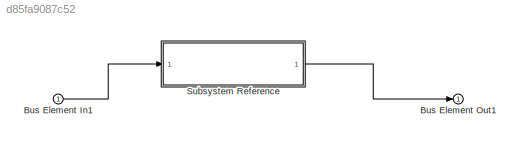
MODEL slx_d85fa9087c52
KIND model
CONFIG AbsTol = auto
CONFIG EnableMultiTasking = on
CONFIG FixedStep = auto
CONFIG MaxStep = auto
CONFIG MinStep = auto
CONFIG RelTol = 1e-3
CONFIG SampleTimeConstraint = Unconstrained
CONFIG SolverName = FixedStepAuto
CONFIG StartTime = 0.0
CONFIG StopTime = 10.0
BLOCK [Inport] Bus Element In1
BLOCK [Outport] Bus Element Out1
BLOCK [SubSystem] Subsystem Reference
  ReferencedSubsystem = drgkbh
LINE Bus Element In1:1 -> Subsystem Reference:1
LINE Subsystem Reference:1 -> Bus Element Out1:1
